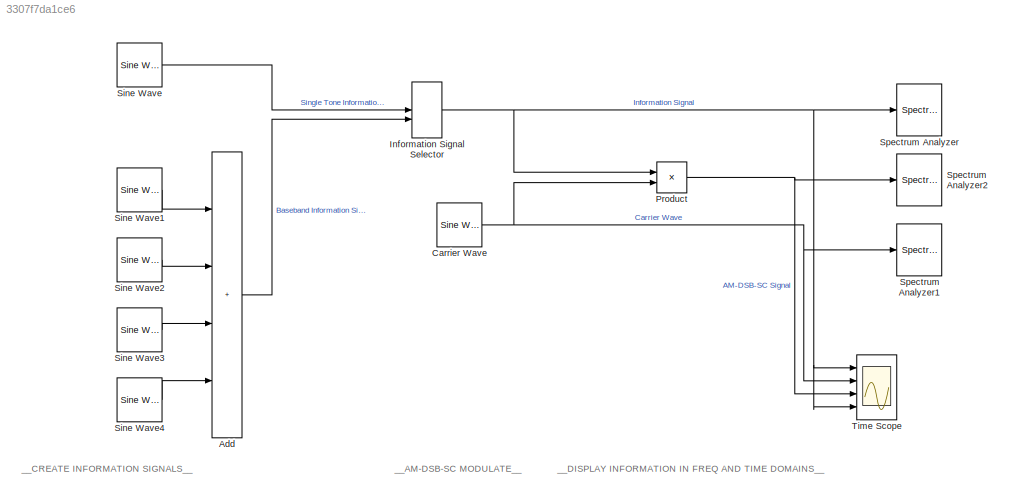
MODEL slx_3307f7da1ce6
KIND model
CONFIG AbsTol = auto
CONFIG EnableMultiTasking = on
CONFIG FixedStep = auto
CONFIG MaxStep = auto
CONFIG MinStep = auto
CONFIG PostLoadFcn = fs  = 500e3;\n\nsingletone.Ai = 8;\nsingletone.fi = 2e3;\nsingletone.ph = 0;\n\nbband1.Ai = 1;\nbband1.fi = 1e3;\nbband1.ph = pi/2;\n\nbband2.Ai = 3;\nbband2.fi = 2e3;\nbband2.ph = 0;\n\nbband3.Ai = 2;\nbband3.fi = 3e3;\nbband3.ph = pi/4;\n\nbband4.Ai = 5;\nbband4.fi = 4e3;\nbband4.ph = pi/3;\n\ncarrier.Ac = 1;\ncarrier.fc = 15e3;\ncarrier.ph = 0;
CONFIG PreLoadFcn = %%%%%%%%%%%%%%%%%%%%%%%%%%%%%%%%%%%%%%%%%%%%%%%%%%%%%%%%%%%%%%%%%%%%%%%%%%%\n% check to see if Simulink library folder is missing from the MATLAB path %\n%%%%%%%%%%%%%%%%%%%%%%%%%%%%%%%%%%%%%%%%%%%%%%%%%%%%%%%%%%%%%%%%%%%%%%%%%%%\nif isempty(strfind(path, 'rtlsdr_book_library'))\n    \n    % create error window\n    fig_error = figure(...\n        'Name', 'Error: RTL-SDR Book Library',...\n        'Toolba...<+2697ch>
CONFIG RelTol = 1e-3
CONFIG SampleTimeConstraint = Unconstrained
CONFIG SolverName = ode45
CONFIG StartTime = 0.0
CONFIG StopTime = 0.03
BLOCK [Sum] Add
  IconShape = rectangular
  Inputs = ++++
  Ports = [4, 1]
BLOCK [Reference] Carrier Wave  REF=dspsrcs4/Sine Wave
  Ports = [0, 1]
  SourceBlock = dspsrcs4/Sine Wave
  SourceProductBaseCode = DS
  SourceType = Sine Wave
BLOCK [ManualSwitch] Information Signal Selector
BLOCK [Product] Product
  Ports = [2, 1]
BLOCK [Reference] Sine Wave  REF=dspsrcs4/Sine Wave
  Ports = [0, 1]
  SourceBlock = dspsrcs4/Sine Wave
  SourceProductBaseCode = DS
  SourceType = Sine Wave
BLOCK [Reference] Sine Wave1  REF=dspsrcs4/Sine Wave
  Ports = [0, 1]
  SourceBlock = dspsrcs4/Sine Wave
  SourceProductBaseCode = DS
  SourceType = Sine Wave
BLOCK [Reference] Sine Wave2  REF=dspsrcs4/Sine Wave
  Ports = [0, 1]
  SourceBlock = dspsrcs4/Sine Wave
  SourceProductBaseCode = DS
  SourceType = Sine Wave
BLOCK [Reference] Sine Wave3  REF=dspsrcs4/Sine Wave
  Ports = [0, 1]
  SourceBlock = dspsrcs4/Sine Wave
  SourceProductBaseCode = DS
  SourceType = Sine Wave
BLOCK [Reference] Sine Wave4  REF=dspsrcs4/Sine Wave
  Ports = [0, 1]
  SourceBlock = dspsrcs4/Sine Wave
  SourceProductBaseCode = DS
  SourceType = Sine Wave
BLOCK [SpectrumAnalyzer] Spectrum Analyzer
  Ports = [1]
  ScopeSpecificationString = spbscopes.SpectrumAnalyzerBlockCfg('CurrentConfiguration', extmgr.ConfigurationSet(extmgr.Configuration('Core','General UI',true,'ShowMainToolbar',false,'ShowStatusbar',false,'FigureColor',[0.941176470588235 0.941176470588235 0.941176470588235]),extmgr.Configuration('Core','Source UI',true),extmgr.Configuration('Sources','WiredSimulink',true),extmgr.Configuration('Sources','File',false),extmgr.Con...<+4045ch>
  StartFcn = startfcn_spectrum_analyzer;
BLOCK [SpectrumAnalyzer] Spectrum Analyzer1
  Ports = [1]
  ScopeSpecificationString = spbscopes.SpectrumAnalyzerBlockCfg('CurrentConfiguration', extmgr.ConfigurationSet(extmgr.Configuration('Core','General UI',true,'ShowMainToolbar',false,'ShowStatusbar',false,'FigureColor',[0.941176470588235 0.941176470588235 0.941176470588235]),extmgr.Configuration('Core','Source UI',true),extmgr.Configuration('Sources','WiredSimulink',true),extmgr.Configuration('Sources','File',false),extmgr.Con...<+4040ch>
  StartFcn = startfcn_spectrum_analyzer;
BLOCK [SpectrumAnalyzer] Spectrum Analyzer2
  Ports = [1]
  ScopeSpecificationString = spbscopes.SpectrumAnalyzerBlockCfg('CurrentConfiguration', extmgr.ConfigurationSet(extmgr.Configuration('Core','General UI',true,'ShowMainToolbar',false,'ShowStatusbar',false,'FigureColor',[0.941176470588235 0.941176470588235 0.941176470588235]),extmgr.Configuration('Core','Source UI',true),extmgr.Configuration('Sources','WiredSimulink',true),extmgr.Configuration('Sources','File',false),extmgr.Con...<+4030ch>
  StartFcn = startfcn_spectrum_analyzer;
BLOCK [Scope] Time Scope
  DefaultConfigurationName = spbscopes.TimeScopeBlockCfg
  Floating = off
  NumInputPorts = 4
  Ports = [4]
  ScopeSpecificationString = spbscopes.TimeScopeBlockCfg('CurrentConfiguration', extmgr.ConfigurationSet(extmgr.Configuration('Core','General UI',true,'ShowStatusbar',false,'FigureColor',[0.941176470588235 0.941176470588235 0.941176470588235]),extmgr.Configuration('Core','Source UI',true),extmgr.Configuration('Sources','WiredSimulink',true,'PointsPerSignal',100000,'DataLoggingVariableName','ScopeData1'),extmgr.Configuration('...<+3780ch>
  StartFcn = startfcn_time_scope;
  UserDataPersistent = on
ANNOTATION (root): __AM-DSB-SC MODULATE__
ANNOTATION (root): __CREATE INFORMATION SIGNALS__
ANNOTATION (root): __DISPLAY INFORMATION IN FREQ AND TIME DOMAINS__
LINE Add:1 -> Information Signal Selector:2
NET Carrier Wave:1 -> Product:2, Spectrum Analyzer1:1, Time Scope:2
NET Information Signal Selector:1 -> Product:1, Spectrum Analyzer:1, Time Scope:1, Time Scope:4
NET Product:1 -> Spectrum Analyzer2:1, Time Scope:3
LINE Sine Wave1:1 -> Add:1
LINE Sine Wave2:1 -> Add:2
LINE Sine Wave3:1 -> Add:3
LINE Sine Wave4:1 -> Add:4
LINE Sine Wave:1 -> Information Signal Selector:1
note: NET lines group one-source signal fan-out (src -> all destinations, sorted); 1:1 wires keep LINE
